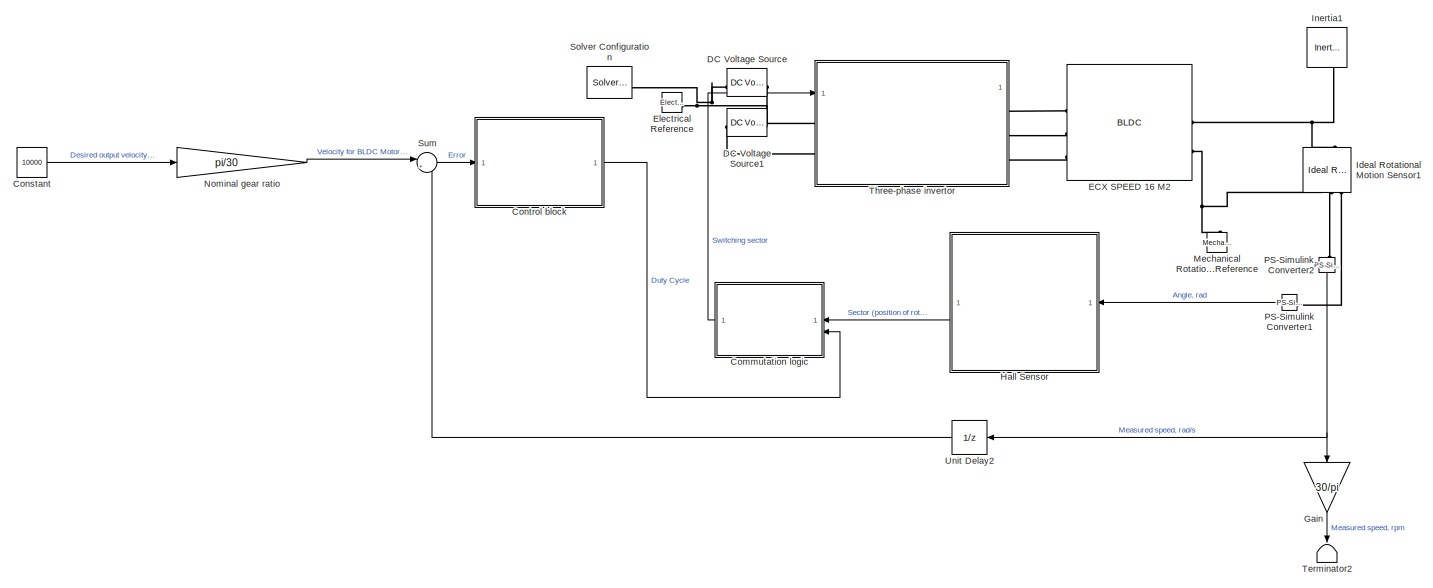
[diagram: root canvas - part 1/2, center side, full height]
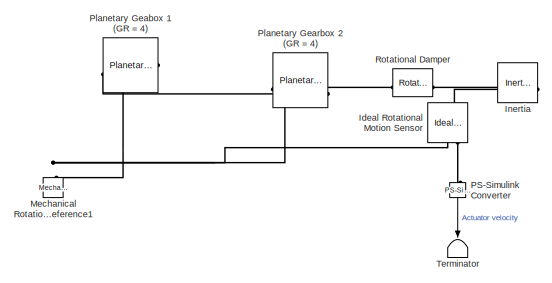
[diagram: root canvas - part 2/2, middle right region]
MODEL slx_9e50c82cb26e
KIND model
CONFIG AbsTol = auto
CONFIG EnableMultiTasking = off
CONFIG FixedStep = auto
CONFIG MaxStep = 1e-5
CONFIG MinStep = auto
CONFIG RelTol = 1e-3
CONFIG SampleTimeConstraint = Unconstrained
CONFIG SolverName = ode1be
CONFIG StartTime = 0.0
CONFIG StopTime = 0.015
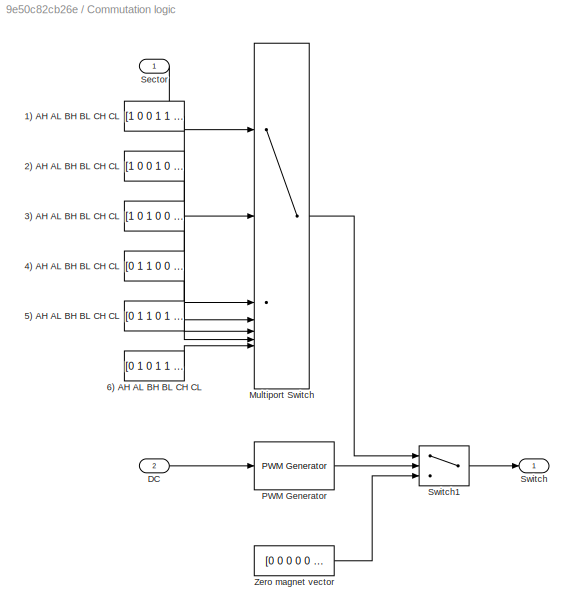
BLOCK [SubSystem] Commutation logic
BLOCK [Constant] Commutation logic/1) AH AL BH BL CH CL
  Value = [1 0 0 1 1 0]
BLOCK [Constant] Commutation logic/2) AH AL BH BL CH CL
  Value = [1 0 0 1 0 1]
BLOCK [Constant] Commutation logic/3) AH AL BH BL CH CL
  Value = [1 0 1 0 0 1]
BLOCK [Constant] Commutation logic/4) AH AL BH BL CH CL
  Value = [0 1 1 0 0 1]
BLOCK [Constant] Commutation logic/5) AH AL BH BL CH CL
  Value = [0 1 1 0 1 0]
BLOCK [Constant] Commutation logic/6) AH AL BH BL CH CL
  Value = [0 1 0 1 1 0]
BLOCK [Inport] Commutation logic/DC
  Port = 2
BLOCK [MultiPortSwitch] Commutation logic/Multiport Switch
  InputSameDT = off
  Inputs = 6
  SaturateOnIntegerOverflow = off
BLOCK [Reference] Commutation logic/PWM Generator  REF=eePwmGenerator/PWM Generator
  LibrarySourceBlock = ee_sl_lib/Pulse Width\nModulation/PWM Generator
  SourceBlock = eePwmGenerator/PWM Generator
  SourceType = PWM Generator
BLOCK [Inport] Commutation logic/Sector
BLOCK [Outport] Commutation logic/Switch
BLOCK [Switch] Commutation logic/Switch1
  Criteria = u2 > Threshold
  InputSameDT = off
  SaturateOnIntegerOverflow = off
  Threshold = 0.5
BLOCK [Constant] Commutation logic/Zero magnet vector
  Value = [0 0 0 0 0 0]
BLOCK [Constant] Constant
  Value = 10000
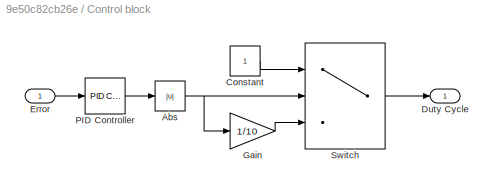
BLOCK [SubSystem] Control block 
BLOCK [Abs] Control block /Abs
  SaturateOnIntegerOverflow = off
BLOCK [Constant] Control block /Constant
BLOCK [Outport] Control block /Duty Cycle
BLOCK [Inport] Control block /Error
BLOCK [Gain] Control block /Gain
  Gain = 1/10
BLOCK [Reference] Control block /PID Controller  REF=slpidlib/PID Controller
  LibrarySourceBlock = simulink/Continuous/PID Controller
  SourceBlock = slpidlib/PID Controller
  SourceType = PID 1dof
BLOCK [Switch] Control block /Switch
  Criteria = u2 > Threshold
  InputSameDT = off
  SaturateOnIntegerOverflow = off
  Threshold = 10
BLOCK [Reference] DC Voltage Source  REF=ee_lib/Additional
Components/SPICE Sources/DC Voltage Source
  SourceBlock = ee_lib/Additional\nComponents/SPICE Sources/DC Voltage Source
  SourceType = DC Voltage Source
BLOCK [Reference] DC Voltage Source1  REF=ee_lib/Additional
Components/SPICE Sources/DC Voltage Source
  NameLocation = top
  SourceBlock = ee_lib/Additional\nComponents/SPICE Sources/DC Voltage Source
  SourceType = DC Voltage Source
BLOCK [Reference] ECX SPEED 16 M2  REF=ee_lib/Electromechanical/Permanent Magnet/BLDC
  AttributesFormatString = Maxon:ECXSPEED_16M_24
  SourceBlock = ee_lib/Electromechanical/Permanent Magnet/BLDC
  SourceType = BLDC
  Tag = {'toolbox/physmod/elec/library/m/ee_lib_parts';'Electromechanical/Permanent_Magnet/BLDC/Maxon/ECXSPEED_16M_24.xml'}
BLOCK [Reference] Electrical Reference  REF=fl_lib/Electrical/Electrical Elements/Electrical Reference
  LibrarySourceBlock = ee_lib/Connectors &\nReferences/Electrical Reference
  SourceBlock = fl_lib/Electrical/Electrical Elements/Electrical Reference
  SourceType = Electrical Reference
BLOCK [Gain] Gain
  Gain = 30/pi
  NameLocation = left
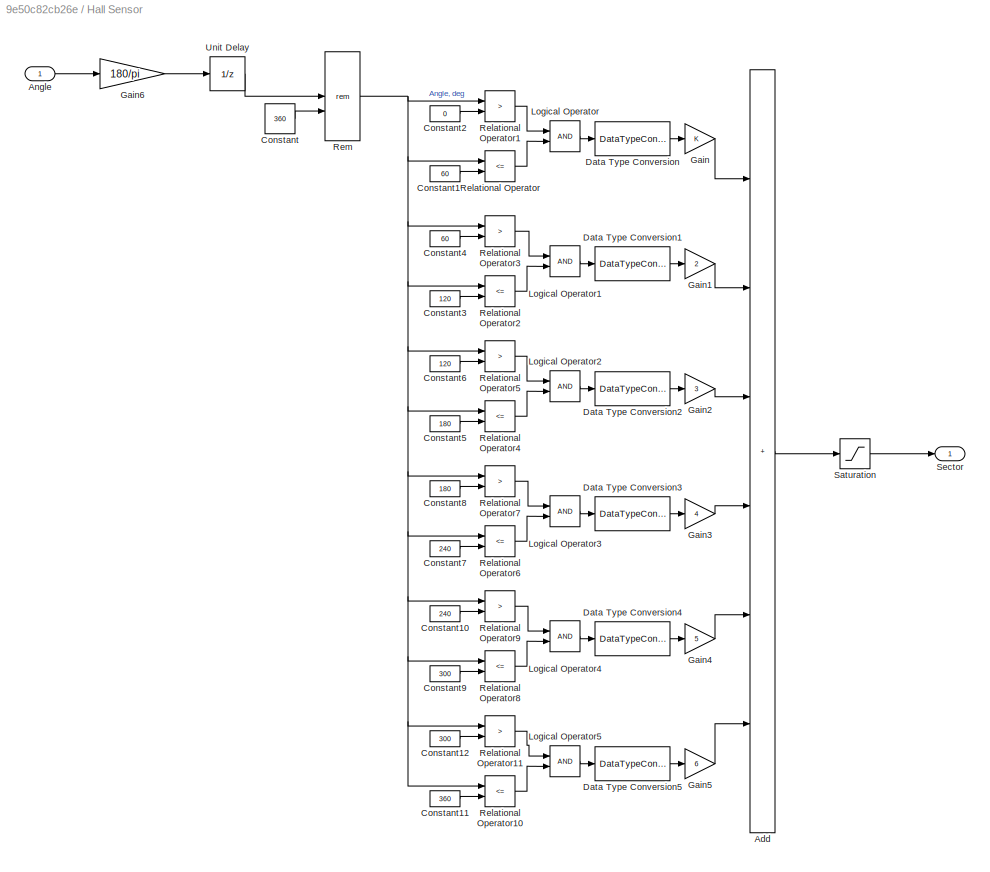
BLOCK [SubSystem] Hall Sensor
BLOCK [Sum] Hall Sensor/Add
  IconShape = rectangular
  Inputs = ++++++
BLOCK [Inport] Hall Sensor/Angle
BLOCK [Constant] Hall Sensor/Constant
  Value = 360
BLOCK [Constant] Hall Sensor/Constant1
  Value = 60
BLOCK [Constant] Hall Sensor/Constant10
  Value = 240
BLOCK [Constant] Hall Sensor/Constant11
  Value = 360
BLOCK [Constant] Hall Sensor/Constant12
  Value = 300
BLOCK [Constant] Hall Sensor/Constant2
  Value = 0
BLOCK [Constant] Hall Sensor/Constant3
  Value = 120
BLOCK [Constant] Hall Sensor/Constant4
  Value = 60
BLOCK [Constant] Hall Sensor/Constant5
  Value = 180
BLOCK [Constant] Hall Sensor/Constant6
  Value = 120
BLOCK [Constant] Hall Sensor/Constant7
  Value = 240
BLOCK [Constant] Hall Sensor/Constant8
  Value = 180
BLOCK [Constant] Hall Sensor/Constant9
  Value = 300
BLOCK [DataTypeConversion] Hall Sensor/Data Type Conversion
  RndMeth = Floor
  SaturateOnIntegerOverflow = off
BLOCK [DataTypeConversion] Hall Sensor/Data Type Conversion1
  RndMeth = Floor
  SaturateOnIntegerOverflow = off
BLOCK [DataTypeConversion] Hall Sensor/Data Type Conversion2
  RndMeth = Floor
  SaturateOnIntegerOverflow = off
BLOCK [DataTypeConversion] Hall Sensor/Data Type Conversion3
  RndMeth = Floor
  SaturateOnIntegerOverflow = off
BLOCK [DataTypeConversion] Hall Sensor/Data Type Conversion4
  RndMeth = Floor
  SaturateOnIntegerOverflow = off
BLOCK [DataTypeConversion] Hall Sensor/Data Type Conversion5
  RndMeth = Floor
  SaturateOnIntegerOverflow = off
BLOCK [Gain] Hall Sensor/Gain
BLOCK [Gain] Hall Sensor/Gain1
  Gain = 2
BLOCK [Gain] Hall Sensor/Gain2
  Gain = 3
BLOCK [Gain] Hall Sensor/Gain3
  Gain = 4
BLOCK [Gain] Hall Sensor/Gain4
  Gain = 5
BLOCK [Gain] Hall Sensor/Gain5
  Gain = 6
BLOCK [Gain] Hall Sensor/Gain6
  Gain = 180/pi
BLOCK [Logic] Hall Sensor/Logical Operator
  AllPortsSameDT = off
  OutDataTypeStr = boolean
BLOCK [Logic] Hall Sensor/Logical Operator1
  AllPortsSameDT = off
  OutDataTypeStr = boolean
BLOCK [Logic] Hall Sensor/Logical Operator2
  AllPortsSameDT = off
  OutDataTypeStr = boolean
BLOCK [Logic] Hall Sensor/Logical Operator3
  AllPortsSameDT = off
  OutDataTypeStr = boolean
BLOCK [Logic] Hall Sensor/Logical Operator4
  AllPortsSameDT = off
  OutDataTypeStr = boolean
BLOCK [Logic] Hall Sensor/Logical Operator5
  AllPortsSameDT = off
  OutDataTypeStr = boolean
BLOCK [RelationalOperator] Hall Sensor/Relational Operator
  InputSameDT = off
  Operator = <=
  OutDataTypeStr = boolean
  RndMeth = Simplest
BLOCK [RelationalOperator] Hall Sensor/Relational Operator1
  InputSameDT = off
  Operator = >
  OutDataTypeStr = boolean
  RndMeth = Simplest
BLOCK [RelationalOperator] Hall Sensor/Relational Operator10
  InputSameDT = off
  Operator = <=
  OutDataTypeStr = boolean
  RndMeth = Simplest
BLOCK [RelationalOperator] Hall Sensor/Relational Operator11
  InputSameDT = off
  Operator = >
  OutDataTypeStr = boolean
  RndMeth = Simplest
BLOCK [RelationalOperator] Hall Sensor/Relational Operator2
  InputSameDT = off
  Operator = <=
  OutDataTypeStr = boolean
  RndMeth = Simplest
BLOCK [RelationalOperator] Hall Sensor/Relational Operator3
  InputSameDT = off
  Operator = >
  OutDataTypeStr = boolean
  RndMeth = Simplest
BLOCK [RelationalOperator] Hall Sensor/Relational Operator4
  InputSameDT = off
  Operator = <=
  OutDataTypeStr = boolean
  RndMeth = Simplest
BLOCK [RelationalOperator] Hall Sensor/Relational Operator5
  InputSameDT = off
  Operator = >
  OutDataTypeStr = boolean
  RndMeth = Simplest
BLOCK [RelationalOperator] Hall Sensor/Relational Operator6
  InputSameDT = off
  Operator = <=
  OutDataTypeStr = boolean
  RndMeth = Simplest
BLOCK [RelationalOperator] Hall Sensor/Relational Operator7
  InputSameDT = off
  Operator = >
  OutDataTypeStr = boolean
  RndMeth = Simplest
BLOCK [RelationalOperator] Hall Sensor/Relational Operator8
  InputSameDT = off
  Operator = <=
  OutDataTypeStr = boolean
  RndMeth = Simplest
BLOCK [RelationalOperator] Hall Sensor/Relational Operator9
  InputSameDT = off
  Operator = >
  OutDataTypeStr = boolean
  RndMeth = Simplest
BLOCK [Math] Hall Sensor/Rem
  Operator = rem
BLOCK [Saturate] Hall Sensor/Saturation
  LowerLimit = 1
  UpperLimit = 6
BLOCK [Outport] Hall Sensor/Sector
BLOCK [UnitDelay] Hall Sensor/Unit Delay
  HasFrameUpgradeWarning = on
  SampleTime = -1
BLOCK [Reference] Ideal Rotational Motion Sensor  REF=fl_lib/Mechanical/Mechanical Sensors/Ideal Rotational
Motion Sensor
  Commented = on
  NameLocation = left
  SourceBlock = fl_lib/Mechanical/Mechanical Sensors/Ideal Rotational\nMotion Sensor
  SourceType = Ideal Rotational\nMotion Sensor
BLOCK [Reference] Ideal Rotational Motion Sensor1  REF=fl_lib/Mechanical/Mechanical Sensors/Ideal Rotational
Motion Sensor
  NameLocation = left
  SourceBlock = fl_lib/Mechanical/Mechanical Sensors/Ideal Rotational\nMotion Sensor
  SourceType = Ideal Rotational\nMotion Sensor
BLOCK [Reference] Inertia  REF=fl_lib/Mechanical/Rotational Elements/Inertia
  Commented = on
  NameLocation = top
  SourceBlock = fl_lib/Mechanical/Rotational Elements/Inertia
  SourceType = Inertia
BLOCK [Reference] Inertia1  REF=fl_lib/Mechanical/Rotational Elements/Inertia
  NameLocation = left
  SourceBlock = fl_lib/Mechanical/Rotational Elements/Inertia
  SourceType = Inertia
BLOCK [Reference] Mechanical Rotational Reference  REF=fl_lib/Mechanical/Rotational Elements/Mechanical
Rotational Reference
  NameLocation = right
  SourceBlock = fl_lib/Mechanical/Rotational Elements/Mechanical\nRotational Reference
  SourceType = Mechanical\nRotational Reference
BLOCK [Reference] Mechanical Rotational Reference1  REF=fl_lib/Mechanical/Rotational Elements/Mechanical
Rotational Reference
  Commented = on
  NameLocation = right
  SourceBlock = fl_lib/Mechanical/Rotational Elements/Mechanical\nRotational Reference
  SourceType = Mechanical\nRotational Reference
BLOCK [Gain] Nominal gear ratio
  Gain = pi/30
BLOCK [Reference] PS-Simulink Converter  REF=nesl_utility/PS-Simulink
Converter
  Commented = on
  NameLocation = left
  SourceBlock = nesl_utility/PS-Simulink\nConverter
  SourceType = PS-Simulink\nConverter
BLOCK [Reference] PS-Simulink Converter1  REF=nesl_utility/PS-Simulink
Converter
  NameLocation = top
  SourceBlock = nesl_utility/PS-Simulink\nConverter
  SourceType = PS-Simulink\nConverter
BLOCK [Reference] PS-Simulink Converter2  REF=nesl_utility/PS-Simulink
Converter
  NameLocation = left
  SourceBlock = nesl_utility/PS-Simulink\nConverter
  SourceType = PS-Simulink\nConverter
BLOCK [Reference] Planetary Geabox 1 (GR = 4)  REF=sdl_lib/Gears/Planetary Gear
  Commented = on
  SourceBlock = sdl_lib/Gears/Planetary Gear
  SourceType = Planetary Gear
BLOCK [Reference] Planetary Gearbox 2 (GR = 4)  REF=sdl_lib/Gears/Planetary Gear
  Commented = on
  SourceBlock = sdl_lib/Gears/Planetary Gear
  SourceType = Planetary Gear
BLOCK [Reference] Rotational Damper  REF=fl_lib/Mechanical/Rotational Elements/Rotational Damper
  Commented = on
  SourceBlock = fl_lib/Mechanical/Rotational Elements/Rotational Damper
  SourceType = Rotational Damper
BLOCK [Reference] Solver Configuration  REF=nesl_utility/Solver
Configuration
  SourceBlock = nesl_utility/Solver\nConfiguration
  SourceType = Solver\nConfiguration
BLOCK [Sum] Sum
  Inputs = |+-
BLOCK [Terminator] Terminator
  Commented = on
  NameLocation = left
BLOCK [Terminator] Terminator2
  NameLocation = left
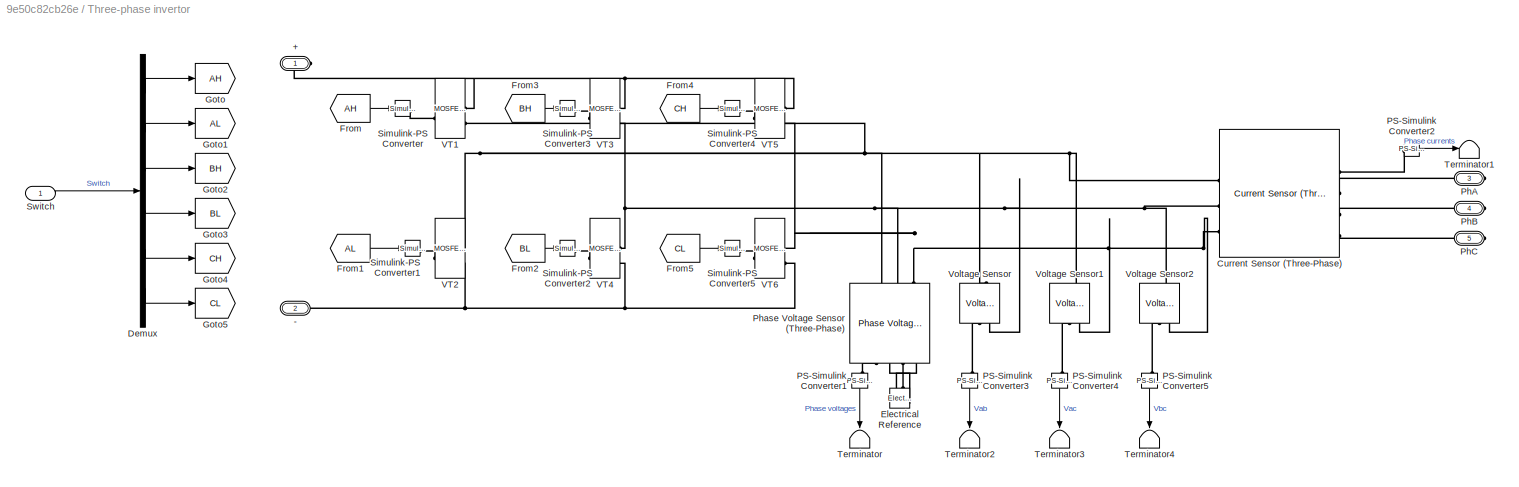
BLOCK [SubSystem] Three-phase invertor
  PortSchema = {"entries":[{"content":{"sides":[{"content":{"connectorIds":["LConn1","LConn2","In1"]},"type":"ConnectorPlacement.EquallySpacedRectSide","uuid":"5a5afb11-4dcf-4489-89c8-206b458d2a08"},{"content":{"connectorIds":["RConn1","RConn2","RConn3"],"side":"RIGHT"},"type":"ConnectorPlacement.EquallySpacedRectSide","uuid":"8ca49dd6-23a6-4a28-b607-cb297ac5a389"},{"content":{"side":"TOP"},"type":"ConnectorPlac...<+260ch>
BLOCK [PMIOPort] Three-phase invertor/+
  Side = Left
BLOCK [PMIOPort] Three-phase invertor/-
  Port = 2
  Side = Left
BLOCK [Reference] Three-phase invertor/Current Sensor (Three-Phase)  REF=ee_lib/Sensors &
Transducers/Current Sensor
(Three-Phase)
  SourceBlock = ee_lib/Sensors &\nTransducers/Current Sensor\n(Three-Phase)
  SourceType = Current Sensor\n(Three-Phase)
BLOCK [Demux] Three-phase invertor/Demux
  Outputs = 6
BLOCK [Reference] Three-phase invertor/Electrical Reference  REF=fl_lib/Electrical/Electrical Elements/Electrical Reference
  NameLocation = right
  SourceBlock = fl_lib/Electrical/Electrical Elements/Electrical Reference
  SourceType = Electrical Reference
BLOCK [From] Three-phase invertor/From
  GotoTag = AH
BLOCK [From] Three-phase invertor/From1
  GotoTag = AL
BLOCK [From] Three-phase invertor/From2
  GotoTag = BL
BLOCK [From] Three-phase invertor/From3
  GotoTag = BH
BLOCK [From] Three-phase invertor/From4
  GotoTag = CH
BLOCK [From] Three-phase invertor/From5
  GotoTag = CL
BLOCK [Goto] Three-phase invertor/Goto
  GotoTag = AH
BLOCK [Goto] Three-phase invertor/Goto1
  GotoTag = AL
BLOCK [Goto] Three-phase invertor/Goto2
  GotoTag = BH
BLOCK [Goto] Three-phase invertor/Goto3
  GotoTag = BL
BLOCK [Goto] Three-phase invertor/Goto4
  GotoTag = CH
BLOCK [Goto] Three-phase invertor/Goto5
  GotoTag = CL
BLOCK [Reference] Three-phase invertor/PS-Simulink Converter1  REF=nesl_utility/PS-Simulink
Converter
  NameLocation = left
  SourceBlock = nesl_utility/PS-Simulink\nConverter
  SourceType = PS-Simulink\nConverter
BLOCK [Reference] Three-phase invertor/PS-Simulink Converter2  REF=nesl_utility/PS-Simulink
Converter
  SourceBlock = nesl_utility/PS-Simulink\nConverter
  SourceType = PS-Simulink\nConverter
BLOCK [Reference] Three-phase invertor/PS-Simulink Converter3  REF=nesl_utility/PS-Simulink
Converter
  NameLocation = left
  SourceBlock = nesl_utility/PS-Simulink\nConverter
  SourceType = PS-Simulink\nConverter
BLOCK [Reference] Three-phase invertor/PS-Simulink Converter4  REF=nesl_utility/PS-Simulink
Converter
  NameLocation = left
  SourceBlock = nesl_utility/PS-Simulink\nConverter
  SourceType = PS-Simulink\nConverter
BLOCK [Reference] Three-phase invertor/PS-Simulink Converter5  REF=nesl_utility/PS-Simulink
Converter
  NameLocation = left
  SourceBlock = nesl_utility/PS-Simulink\nConverter
  SourceType = PS-Simulink\nConverter
BLOCK [PMIOPort] Three-phase invertor/PhA
  Port = 3
  Side = Right
BLOCK [PMIOPort] Three-phase invertor/PhB
  Port = 4
  Side = Right
BLOCK [PMIOPort] Three-phase invertor/PhC
  Port = 5
  Side = Right
BLOCK [Reference] Three-phase invertor/Phase Voltage Sensor (Three-Phase)  REF=ee_lib/Sensors &
Transducers/Phase Voltage Sensor
(Three-Phase)
  NameLocation = right
  SourceBlock = ee_lib/Sensors &\nTransducers/Phase Voltage Sensor\n(Three-Phase)
  SourceType = Phase Voltage Sensor\n(Three-Phase)
BLOCK [Reference] Three-phase invertor/Simulink-PS Converter  REF=nesl_utility/Simulink-PS
Converter
  SourceBlock = nesl_utility/Simulink-PS\nConverter
  SourceType = Simulink-PS\nConverter
BLOCK [Reference] Three-phase invertor/Simulink-PS Converter1  REF=nesl_utility/Simulink-PS
Converter
  SourceBlock = nesl_utility/Simulink-PS\nConverter
  SourceType = Simulink-PS\nConverter
BLOCK [Reference] Three-phase invertor/Simulink-PS Converter2  REF=nesl_utility/Simulink-PS
Converter
  SourceBlock = nesl_utility/Simulink-PS\nConverter
  SourceType = Simulink-PS\nConverter
BLOCK [Reference] Three-phase invertor/Simulink-PS Converter3  REF=nesl_utility/Simulink-PS
Converter
  SourceBlock = nesl_utility/Simulink-PS\nConverter
  SourceType = Simulink-PS\nConverter
BLOCK [Reference] Three-phase invertor/Simulink-PS Converter4  REF=nesl_utility/Simulink-PS
Converter
  SourceBlock = nesl_utility/Simulink-PS\nConverter
  SourceType = Simulink-PS\nConverter
BLOCK [Reference] Three-phase invertor/Simulink-PS Converter5  REF=nesl_utility/Simulink-PS
Converter
  SourceBlock = nesl_utility/Simulink-PS\nConverter
  SourceType = Simulink-PS\nConverter
BLOCK [Inport] Three-phase invertor/Switch
BLOCK [Terminator] Three-phase invertor/Terminator
  NameLocation = left
BLOCK [Terminator] Three-phase invertor/Terminator1
BLOCK [Terminator] Three-phase invertor/Terminator2
  NameLocation = left
BLOCK [Terminator] Three-phase invertor/Terminator3
  NameLocation = left
BLOCK [Terminator] Three-phase invertor/Terminator4
  NameLocation = left
BLOCK [Reference] Three-phase invertor/VT1  REF=ee_lib/Semiconductors &
Converters/MOSFET
(Ideal,
Switching)
  SourceBlock = ee_lib/Semiconductors &\nConverters/MOSFET\n(Ideal,\nSwitching)
  SourceType = MOSFET\n(Ideal,\nSwitching)
BLOCK [Reference] Three-phase invertor/VT2  REF=ee_lib/Semiconductors &
Converters/MOSFET
(Ideal,
Switching)
  SourceBlock = ee_lib/Semiconductors &\nConverters/MOSFET\n(Ideal,\nSwitching)
  SourceType = MOSFET\n(Ideal,\nSwitching)
BLOCK [Reference] Three-phase invertor/VT3  REF=ee_lib/Semiconductors &
Converters/MOSFET
(Ideal,
Switching)
  SourceBlock = ee_lib/Semiconductors &\nConverters/MOSFET\n(Ideal,\nSwitching)
  SourceType = MOSFET\n(Ideal,\nSwitching)
BLOCK [Reference] Three-phase invertor/VT4  REF=ee_lib/Semiconductors &
Converters/MOSFET
(Ideal,
Switching)
  SourceBlock = ee_lib/Semiconductors &\nConverters/MOSFET\n(Ideal,\nSwitching)
  SourceType = MOSFET\n(Ideal,\nSwitching)
BLOCK [Reference] Three-phase invertor/VT5  REF=ee_lib/Semiconductors &
Converters/MOSFET
(Ideal,
Switching)
  SourceBlock = ee_lib/Semiconductors &\nConverters/MOSFET\n(Ideal,\nSwitching)
  SourceType = MOSFET\n(Ideal,\nSwitching)
BLOCK [Reference] Three-phase invertor/VT6  REF=ee_lib/Semiconductors &
Converters/MOSFET
(Ideal,
Switching)
  SourceBlock = ee_lib/Semiconductors &\nConverters/MOSFET\n(Ideal,\nSwitching)
  SourceType = MOSFET\n(Ideal,\nSwitching)
BLOCK [Reference] Three-phase invertor/Voltage Sensor  REF=fl_lib/Electrical/Electrical Sensors/Voltage Sensor
  NameLocation = right
  SourceBlock = fl_lib/Electrical/Electrical Sensors/Voltage Sensor
  SourceType = Voltage Sensor
BLOCK [Reference] Three-phase invertor/Voltage Sensor1  REF=fl_lib/Electrical/Electrical Sensors/Voltage Sensor
  NameLocation = right
  SourceBlock = fl_lib/Electrical/Electrical Sensors/Voltage Sensor
  SourceType = Voltage Sensor
BLOCK [Reference] Three-phase invertor/Voltage Sensor2  REF=fl_lib/Electrical/Electrical Sensors/Voltage Sensor
  NameLocation = right
  SourceBlock = fl_lib/Electrical/Electrical Sensors/Voltage Sensor
  SourceType = Voltage Sensor
BLOCK [UnitDelay] Unit Delay2
  HasFrameUpgradeWarning = on
  SampleTime = -1
LINE Commutation logic/1) AH AL BH BL CH CL:1 -> Commutation logic/Multiport Switch:2
LINE Commutation logic/2) AH AL BH BL CH CL:1 -> Commutation logic/Multiport Switch:3
LINE Commutation logic/3) AH AL BH BL CH CL:1 -> Commutation logic/Multiport Switch:4
LINE Commutation logic/4) AH AL BH BL CH CL:1 -> Commutation logic/Multiport Switch:5
LINE Commutation logic/5) AH AL BH BL CH CL:1 -> Commutation logic/Multiport Switch:6
LINE Commutation logic/6) AH AL BH BL CH CL:1 -> Commutation logic/Multiport Switch:7
LINE Commutation logic/DC:1 -> Commutation logic/PWM Generator:1
LINE Commutation logic/Multiport Switch:1 -> Commutation logic/Switch1:1
LINE Commutation logic/PWM Generator:1 -> Commutation logic/Switch1:2
LINE Commutation logic/Sector:1 -> Commutation logic/Multiport Switch:1
LINE Commutation logic/Switch1:1 -> Commutation logic/Switch:1
LINE Commutation logic/Zero magnet vector:1 -> Commutation logic/Switch1:3
LINE Commutation logic:1 -> Three-phase invertor:1
LINE Constant:1 -> Nominal gear ratio:1
NET Control block /Abs:1 -> Control block /Gain:1, Control block /Switch:2
LINE Control block /Constant:1 -> Control block /Switch:1
LINE Control block /Error:1 -> Control block /PID Controller:1
LINE Control block /Gain:1 -> Control block /Switch:3
LINE Control block /PID Controller:1 -> Control block /Abs:1
LINE Control block /Switch:1 -> Control block /Duty Cycle:1
LINE Control block :1 -> Commutation logic:2
LINE Gain:1 -> Terminator2:1
LINE Hall Sensor/Add:1 -> Hall Sensor/Saturation:1
LINE Hall Sensor/Angle:1 -> Hall Sensor/Gain6:1
LINE Hall Sensor/Constant10:1 -> Hall Sensor/Relational Operator9:2
LINE Hall Sensor/Constant11:1 -> Hall Sensor/Relational Operator10:2
LINE Hall Sensor/Constant12:1 -> Hall Sensor/Relational Operator11:2
LINE Hall Sensor/Constant1:1 -> Hall Sensor/Relational Operator:2
LINE Hall Sensor/Constant2:1 -> Hall Sensor/Relational Operator1:2
LINE Hall Sensor/Constant3:1 -> Hall Sensor/Relational Operator2:2
LINE Hall Sensor/Constant4:1 -> Hall Sensor/Relational Operator3:2
LINE Hall Sensor/Constant5:1 -> Hall Sensor/Relational Operator4:2
LINE Hall Sensor/Constant6:1 -> Hall Sensor/Relational Operator5:2
LINE Hall Sensor/Constant7:1 -> Hall Sensor/Relational Operator6:2
LINE Hall Sensor/Constant8:1 -> Hall Sensor/Relational Operator7:2
LINE Hall Sensor/Constant9:1 -> Hall Sensor/Relational Operator8:2
LINE Hall Sensor/Constant:1 -> Hall Sensor/Rem:2
LINE Hall Sensor/Data Type Conversion1:1 -> Hall Sensor/Gain1:1
LINE Hall Sensor/Data Type Conversion2:1 -> Hall Sensor/Gain2:1
LINE Hall Sensor/Data Type Conversion3:1 -> Hall Sensor/Gain3:1
LINE Hall Sensor/Data Type Conversion4:1 -> Hall Sensor/Gain4:1
LINE Hall Sensor/Data Type Conversion5:1 -> Hall Sensor/Gain5:1
LINE Hall Sensor/Data Type Conversion:1 -> Hall Sensor/Gain:1
LINE Hall Sensor/Gain1:1 -> Hall Sensor/Add:2
LINE Hall Sensor/Gain2:1 -> Hall Sensor/Add:3
LINE Hall Sensor/Gain3:1 -> Hall Sensor/Add:4
LINE Hall Sensor/Gain4:1 -> Hall Sensor/Add:5
LINE Hall Sensor/Gain5:1 -> Hall Sensor/Add:6
LINE Hall Sensor/Gain6:1 -> Hall Sensor/Unit Delay:1
LINE Hall Sensor/Gain:1 -> Hall Sensor/Add:1
LINE Hall Sensor/Logical Operator1:1 -> Hall Sensor/Data Type Conversion1:1
LINE Hall Sensor/Logical Operator2:1 -> Hall Sensor/Data Type Conversion2:1
LINE Hall Sensor/Logical Operator3:1 -> Hall Sensor/Data Type Conversion3:1
LINE Hall Sensor/Logical Operator4:1 -> Hall Sensor/Data Type Conversion4:1
LINE Hall Sensor/Logical Operator5:1 -> Hall Sensor/Data Type Conversion5:1
LINE Hall Sensor/Logical Operator:1 -> Hall Sensor/Data Type Conversion:1
LINE Hall Sensor/Relational Operator10:1 -> Hall Sensor/Logical Operator5:2
LINE Hall Sensor/Relational Operator11:1 -> Hall Sensor/Logical Operator5:1
LINE Hall Sensor/Relational Operator1:1 -> Hall Sensor/Logical Operator:1
LINE Hall Sensor/Relational Operator2:1 -> Hall Sensor/Logical Operator1:2
LINE Hall Sensor/Relational Operator3:1 -> Hall Sensor/Logical Operator1:1
LINE Hall Sensor/Relational Operator4:1 -> Hall Sensor/Logical Operator2:2
LINE Hall Sensor/Relational Operator5:1 -> Hall Sensor/Logical Operator2:1
LINE Hall Sensor/Relational Operator6:1 -> Hall Sensor/Logical Operator3:2
LINE Hall Sensor/Relational Operator7:1 -> Hall Sensor/Logical Operator3:1
LINE Hall Sensor/Relational Operator8:1 -> Hall Sensor/Logical Operator4:2
LINE Hall Sensor/Relational Operator9:1 -> Hall Sensor/Logical Operator4:1
LINE Hall Sensor/Relational Operator:1 -> Hall Sensor/Logical Operator:2
NET Hall Sensor/Rem:1 -> Hall Sensor/Relational Operator10:1, Hall Sensor/Relational Operator11:1, Hall Sensor/Relational Operator1:1, Hall Sensor/Relational Operator2:1, Hall Sensor/Relational Operator3:1, Hall Sensor/Relational Operator4:1, Hall Sensor/Relational Operator5:1, Hall Sensor/Relational Operator6:1, Hall Sensor/Relational Operator7:1, Hall Sensor/Relational Operator8:1, Hall Sensor/Relational Operator9:1, Hall Sensor/Relational Operator:1
LINE Hall Sensor/Saturation:1 -> Hall Sensor/Sector:1
LINE Hall Sensor/Unit Delay:1 -> Hall Sensor/Rem:1
LINE Hall Sensor:1 -> Commutation logic:1
LINE Nominal gear ratio:1 -> Sum:1
LINE PS-Simulink Converter1:1 -> Hall Sensor:1
NET PS-Simulink Converter2:1 -> Gain:1, Unit Delay2:1
LINE PS-Simulink Converter:1 -> Terminator:1
LINE Sum:1 -> Control block :1
LINE Three-phase invertor/Demux:1 -> Three-phase invertor/Goto:1
LINE Three-phase invertor/Demux:2 -> Three-phase invertor/Goto1:1
LINE Three-phase invertor/Demux:3 -> Three-phase invertor/Goto2:1
LINE Three-phase invertor/Demux:4 -> Three-phase invertor/Goto3:1
LINE Three-phase invertor/Demux:5 -> Three-phase invertor/Goto4:1
LINE Three-phase invertor/Demux:6 -> Three-phase invertor/Goto5:1
LINE Three-phase invertor/From1:1 -> Three-phase invertor/Simulink-PS Converter1:1
LINE Three-phase invertor/From2:1 -> Three-phase invertor/Simulink-PS Converter2:1
LINE Three-phase invertor/From3:1 -> Three-phase invertor/Simulink-PS Converter3:1
LINE Three-phase invertor/From4:1 -> Three-phase invertor/Simulink-PS Converter4:1
LINE Three-phase invertor/From5:1 -> Three-phase invertor/Simulink-PS Converter5:1
LINE Three-phase invertor/From:1 -> Three-phase invertor/Simulink-PS Converter:1
LINE Three-phase invertor/PS-Simulink Converter1:1 -> Three-phase invertor/Terminator:1
LINE Three-phase invertor/PS-Simulink Converter2:1 -> Three-phase invertor/Terminator1:1
LINE Three-phase invertor/PS-Simulink Converter3:1 -> Three-phase invertor/Terminator2:1
LINE Three-phase invertor/PS-Simulink Converter4:1 -> Three-phase invertor/Terminator3:1
LINE Three-phase invertor/PS-Simulink Converter5:1 -> Three-phase invertor/Terminator4:1
LINE Three-phase invertor/Switch:1 -> Three-phase invertor/Demux:1
LINE Unit Delay2:1 -> Sum:2
PNET net1: DC Voltage Source1:LConn1 -- DC Voltage Source:RConn1 -- Electrical Reference:LConn1 -- Solver Configuration:RConn1
PLINE DC Voltage Source1:RConn1 -- Three-phase invertor:LConn2
PLINE DC Voltage Source:LConn1 -- Three-phase invertor:LConn1
PLINE ECX SPEED 16 M2:LConn1 -- Three-phase invertor:RConn1
PLINE ECX SPEED 16 M2:LConn2 -- Three-phase invertor:RConn2
PLINE ECX SPEED 16 M2:LConn3 -- Three-phase invertor:RConn3
PNET net2: ECX SPEED 16 M2:RConn1 -- Ideal Rotational Motion Sensor1:LConn1 -- Inertia1:LConn1
PNET net3: ECX SPEED 16 M2:RConn2 -- Ideal Rotational Motion Sensor1:RConn1 -- Mechanical Rotational Reference:LConn1
PLINE Ideal Rotational Motion Sensor1:RConn2 -- PS-Simulink Converter2:LConn1
PLINE Ideal Rotational Motion Sensor1:RConn3 -- PS-Simulink Converter1:LConn1
PNET net4: Ideal Rotational Motion Sensor:LConn1 -- Inertia:LConn1 -- Rotational Damper:RConn1
PNET net5: Ideal Rotational Motion Sensor:RConn1 -- Mechanical Rotational Reference1:LConn1 -- Planetary Geabox 1 (GR = 4):RConn1 -- Planetary Gearbox 2 (GR = 4):RConn1
PLINE Ideal Rotational Motion Sensor:RConn2 -- PS-Simulink Converter:LConn1
PLINE Planetary Geabox 1 (GR = 4):LConn1 -- Planetary Gearbox 2 (GR = 4):RConn2
PLINE Planetary Gearbox 2 (GR = 4):LConn1 -- Rotational Damper:LConn1
PNET net6: Three-phase invertor/+:RConn1 -- Three-phase invertor/VT1:RConn1 -- Three-phase invertor/VT3:RConn1 -- Three-phase invertor/VT5:RConn1
PNET net7: Three-phase invertor/-:RConn1 -- Three-phase invertor/VT2:RConn2 -- Three-phase invertor/VT4:RConn2 -- Three-phase invertor/VT6:RConn2
PNET net8: Three-phase invertor/Current Sensor (Three-Phase):LConn1 -- Three-phase invertor/Phase Voltage Sensor (Three-Phase):LConn1 -- Three-phase invertor/VT1:RConn2 -- Three-phase invertor/VT2:RConn1 -- Three-phase invertor/Voltage Sensor1:LConn1 -- Three-phase invertor/Voltage Sensor:LConn1
PNET net9: Three-phase invertor/Current Sensor (Three-Phase):LConn2 -- Three-phase invertor/Phase Voltage Sensor (Three-Phase):LConn2 -- Three-phase invertor/VT3:RConn2 -- Three-phase invertor/VT4:RConn1 -- Three-phase invertor/Voltage Sensor2:LConn1 -- Three-phase invertor/Voltage Sensor:RConn2
PNET net10: Three-phase invertor/Current Sensor (Three-Phase):LConn3 -- Three-phase invertor/Phase Voltage Sensor (Three-Phase):LConn3 -- Three-phase invertor/VT5:RConn2 -- Three-phase invertor/VT6:RConn1 -- Three-phase invertor/Voltage Sensor1:RConn2 -- Three-phase invertor/Voltage Sensor2:RConn2
PLINE Three-phase invertor/Current Sensor (Three-Phase):RConn1 -- Three-phase invertor/PS-Simulink Converter2:LConn1
PLINE Three-phase invertor/Current Sensor (Three-Phase):RConn2 -- Three-phase invertor/PhA:RConn1
PLINE Three-phase invertor/Current Sensor (Three-Phase):RConn3 -- Three-phase invertor/PhB:RConn1
PLINE Three-phase invertor/Current Sensor (Three-Phase):RConn4 -- Three-phase invertor/PhC:RConn1
PNET net11: Three-phase invertor/Electrical Reference:LConn1 -- Three-phase invertor/Phase Voltage Sensor (Three-Phase):RConn2 -- Three-phase invertor/Phase Voltage Sensor (Three-Phase):RConn3 -- Three-phase invertor/Phase Voltage Sensor (Three-Phase):RConn4
PLINE Three-phase invertor/PS-Simulink Converter1:LConn1 -- Three-phase invertor/Phase Voltage Sensor (Three-Phase):RConn1
PLINE Three-phase invertor/PS-Simulink Converter3:LConn1 -- Three-phase invertor/Voltage Sensor:RConn1
PLINE Three-phase invertor/PS-Simulink Converter4:LConn1 -- Three-phase invertor/Voltage Sensor1:RConn1
PLINE Three-phase invertor/PS-Simulink Converter5:LConn1 -- Three-phase invertor/Voltage Sensor2:RConn1
PLINE Three-phase invertor/Simulink-PS Converter1:RConn1 -- Three-phase invertor/VT2:LConn1
PLINE Three-phase invertor/Simulink-PS Converter2:RConn1 -- Three-phase invertor/VT4:LConn1
PLINE Three-phase invertor/Simulink-PS Converter3:RConn1 -- Three-phase invertor/VT3:LConn1
PLINE Three-phase invertor/Simulink-PS Converter4:RConn1 -- Three-phase invertor/VT5:LConn1
PLINE Three-phase invertor/Simulink-PS Converter5:RConn1 -- Three-phase invertor/VT6:LConn1
PLINE Three-phase invertor/Simulink-PS Converter:RConn1 -- Three-phase invertor/VT1:LConn1
note: NET lines group one-source signal fan-out (src -> all destinations, sorted); 1:1 wires keep LINE; PNET lines group multi-terminal physical nets as a canonical sorted terminal list (undirected conserving connections); 2-terminal nets keep the pairwise PLINE form
